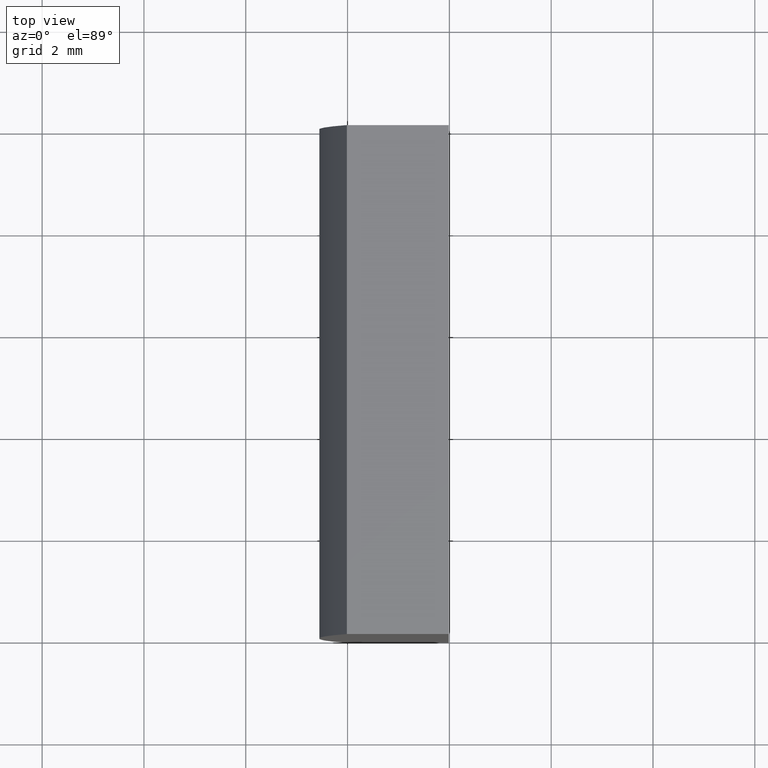
[diagram: clean part render]
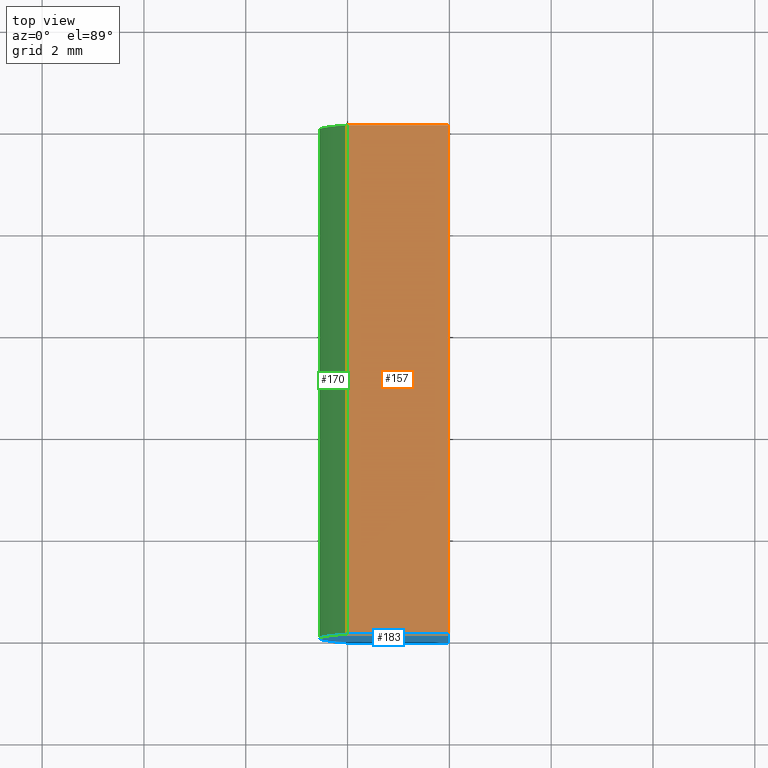
[diagram: same view with three faces highlighted in distinct colors, each labeled with its STEP entity id]
A machine part, top view with three faces highlighted in distinct colors.
Their STEP definitions:

[orange] entity #157 — the highlighted planar face has unit normal (0, 0, -1).
#1 = CARTESIAN_POINT ( 'NONE',  ( -18.01277277529439400, 10.00000000000000000, 5.000000000000000000 ) ) ;
#6 = DIRECTION ( 'NONE',  ( -0.0000000000000000000, -1.000000000000000000, -0.0000000000000000000 ) ) ;
#23 = CARTESIAN_POINT ( 'NONE',  ( -16.01479566514873600, 10.00000000000000000, 5.000000000000000000 ) ) ;
#28 = EDGE_LOOP ( 'NONE', ( #34, #57, #76, #97 ) ) ;
#29 = CARTESIAN_POINT ( 'NONE',  ( -16.01479566514873600, 0.0000000000000000000, 5.000000000000000000 ) ) ;
#31 = VERTEX_POINT ( 'NONE', #33 ) ;
#33 = CARTESIAN_POINT ( 'NONE',  ( -18.01277277529439400, 10.00000000000000000, 5.000000000000000000 ) ) ;
#34 = ORIENTED_EDGE ( 'NONE', *, *, #73, .T. ) ;
#39 = LINE ( 'NONE', #192, #158 ) ;
#47 = VECTOR ( 'NONE', #167, 1000.000000000000000 ) ;
#50 = CARTESIAN_POINT ( 'NONE',  ( -18.01277277529439400, 10.00000000000000000, 5.000000000000000000 ) ) ;
#52 = LINE ( 'NONE', #50, #80 ) ;
#57 = ORIENTED_EDGE ( 'NONE', *, *, #185, .F. ) ;
#64 = CARTESIAN_POINT ( 'NONE',  ( -18.01277277529439400, 0.0000000000000000000, 5.000000000000000000 ) ) ;
#73 = EDGE_CURVE ( 'NONE', #121, #162, #81, .T. ) ;
#76 = ORIENTED_EDGE ( 'NONE', *, *, #106, .F. ) ;
#80 = VECTOR ( 'NONE', #6, 1000.000000000000000 ) ;
#81 = LINE ( 'NONE', #64, #117 ) ;
#95 = EDGE_CURVE ( 'NONE', #31, #121, #52, .T. ) ;
#96 = LINE ( 'NONE', #144, #47 ) ;
#97 = ORIENTED_EDGE ( 'NONE', *, *, #95, .T. ) ;
#104 = VERTEX_POINT ( 'NONE', #23 ) ;
#106 = EDGE_CURVE ( 'NONE', #31, #104, #39, .T. ) ;
#117 = VECTOR ( 'NONE', #193, 1000.000000000000000 ) ;
#120 = FACE_OUTER_BOUND ( 'NONE', #28, .T. ) ;
#121 = VERTEX_POINT ( 'NONE', #149 ) ;
#122 = DIRECTION ( 'NONE',  ( 0.0000000000000000000, 0.0000000000000000000, -1.000000000000000000 ) ) ;
#129 = PLANE ( 'NONE',  #195 ) ;
#144 = CARTESIAN_POINT ( 'NONE',  ( -16.01479566514873600, 10.00000000000000000, 5.000000000000000000 ) ) ;
#147 = DIRECTION ( 'NONE',  ( 1.000000000000000000, 0.0000000000000000000, 0.0000000000000000000 ) ) ;
#149 = CARTESIAN_POINT ( 'NONE',  ( -18.01277277529439400, 0.0000000000000000000, 5.000000000000000000 ) ) ;
#157 = ADVANCED_FACE ( 'NONE', ( #120 ), #129, .F. ) ;
#158 = VECTOR ( 'NONE', #147, 1000.000000000000000 ) ;
#159 = DIRECTION ( 'NONE',  ( -1.000000000000000000, 0.0000000000000000000, -0.0000000000000000000 ) ) ;
#162 = VERTEX_POINT ( 'NONE', #29 ) ;
#167 = DIRECTION ( 'NONE',  ( -0.0000000000000000000, -1.000000000000000000, -0.0000000000000000000 ) ) ;
#185 = EDGE_CURVE ( 'NONE', #104, #162, #96, .T. ) ;
#192 = CARTESIAN_POINT ( 'NONE',  ( -18.01277277529439400, 10.00000000000000000, 5.000000000000000000 ) ) ;
#193 = DIRECTION ( 'NONE',  ( 1.000000000000000000, 0.0000000000000000000, 0.0000000000000000000 ) ) ;
#195 = AXIS2_PLACEMENT_3D ( 'NONE', #1, #122, #159 ) ;

[blue] entity #183 — the highlighted planar face has unit normal (0, 1, 0).
#8 = AXIS2_PLACEMENT_3D ( 'NONE', #48, #164, #46 ) ;
#16 = ORIENTED_EDGE ( 'NONE', *, *, #127, .F. ) ;
#20 = VECTOR ( 'NONE', #111, 1000.000000000000000 ) ;
#24 = FACE_OUTER_BOUND ( 'NONE', #90, .T. ) ;
#29 = CARTESIAN_POINT ( 'NONE',  ( -16.01479566514873600, 0.0000000000000000000, 5.000000000000000000 ) ) ;
#32 = CARTESIAN_POINT ( 'NONE',  ( -18.01277277529439400, 0.0000000000000000000, -5.000000000000000000 ) ) ;
#46 = DIRECTION ( 'NONE',  ( 0.0000000000000000000, -0.0000000000000000000, 1.000000000000000000 ) ) ;
#48 = CARTESIAN_POINT ( 'NONE',  ( 4.355204334851265500, 0.0000000000000000000, 4.286263797015675000E-017 ) ) ;
#51 = CARTESIAN_POINT ( 'NONE',  ( -16.01479566514873900, 0.0000000000000000000, -4.999999999999998200 ) ) ;
#62 = DIRECTION ( 'NONE',  ( 0.0000000000000000000, 1.000000000000000000, 0.0000000000000000000 ) ) ;
#64 = CARTESIAN_POINT ( 'NONE',  ( -18.01277277529439400, 0.0000000000000000000, 5.000000000000000000 ) ) ;
#73 = EDGE_CURVE ( 'NONE', #121, #162, #81, .T. ) ;
#81 = LINE ( 'NONE', #64, #117 ) ;
#82 = CARTESIAN_POINT ( 'NONE',  ( 4.355204334851265500, 0.0000000000000000000, 4.286263797015675000E-017 ) ) ;
#86 = LINE ( 'NONE', #51, #134 ) ;
#90 = EDGE_LOOP ( 'NONE', ( #174, #16, #145, #136 ) ) ;
#91 = CARTESIAN_POINT ( 'NONE',  ( -16.01479566514873900, 0.0000000000000000000, -4.999999999999998200 ) ) ;
#98 = EDGE_CURVE ( 'NONE', #132, #121, #150, .T. ) ;
#99 = LINE ( 'NONE', #32, #20 ) ;
#111 = DIRECTION ( 'NONE',  ( -1.000000000000000000, -0.0000000000000000000, -8.682399148458433600E-016 ) ) ;
#117 = VECTOR ( 'NONE', #193, 1000.000000000000000 ) ;
#121 = VERTEX_POINT ( 'NONE', #149 ) ;
#127 = EDGE_CURVE ( 'NONE', #171, #132, #99, .T. ) ;
#130 = AXIS2_PLACEMENT_3D ( 'NONE', #82, #62, #165 ) ;
#132 = VERTEX_POINT ( 'NONE', #190 ) ;
#134 = VECTOR ( 'NONE', #153, 1000.000000000000000 ) ;
#136 = ORIENTED_EDGE ( 'NONE', *, *, #73, .F. ) ;
#137 = EDGE_CURVE ( 'NONE', #162, #171, #86, .T. ) ;
#145 = ORIENTED_EDGE ( 'NONE', *, *, #137, .F. ) ;
#146 = PLANE ( 'NONE',  #8 ) ;
#149 = CARTESIAN_POINT ( 'NONE',  ( -18.01277277529439400, 0.0000000000000000000, 5.000000000000000000 ) ) ;
#150 = CIRCLE ( 'NONE', #130, 22.92000000000000200 ) ;
#153 = DIRECTION ( 'NONE',  ( -3.469446951953614700E-016, -0.0000000000000000000, -1.000000000000000000 ) ) ;
#162 = VERTEX_POINT ( 'NONE', #29 ) ;
#164 = DIRECTION ( 'NONE',  ( 0.0000000000000000000, 1.000000000000000000, 0.0000000000000000000 ) ) ;
#165 = DIRECTION ( 'NONE',  ( 0.0000000000000000000, 0.0000000000000000000, 1.000000000000000000 ) ) ;
#171 = VERTEX_POINT ( 'NONE', #91 ) ;
#174 = ORIENTED_EDGE ( 'NONE', *, *, #98, .F. ) ;
#183 = ADVANCED_FACE ( 'NONE', ( #24 ), #146, .F. ) ;
#190 = CARTESIAN_POINT ( 'NONE',  ( -18.01277277529439400, 0.0000000000000000000, -5.000000000000000000 ) ) ;
#193 = DIRECTION ( 'NONE',  ( 1.000000000000000000, 0.0000000000000000000, 0.0000000000000000000 ) ) ;

[green] entity #170 — the highlighted cylindrical surface (partial cylindrical patch) has radius 22.92 mm, axis along (-0, -1, -0).
#2 = VECTOR ( 'NONE', #25, 1000.000000000000000 ) ;
#5 = DIRECTION ( 'NONE',  ( -0.0000000000000000000, -1.000000000000000000, -0.0000000000000000000 ) ) ;
#6 = DIRECTION ( 'NONE',  ( -0.0000000000000000000, -1.000000000000000000, -0.0000000000000000000 ) ) ;
#11 = ORIENTED_EDGE ( 'NONE', *, *, #98, .T. ) ;
#22 = CARTESIAN_POINT ( 'NONE',  ( -18.01277277529439400, 10.00000000000000000, -5.000000000000000000 ) ) ;
#25 = DIRECTION ( 'NONE',  ( -0.0000000000000000000, -1.000000000000000000, -0.0000000000000000000 ) ) ;
#30 = CARTESIAN_POINT ( 'NONE',  ( -18.01277277529439400, 10.00000000000000000, -5.000000000000000000 ) ) ;
#31 = VERTEX_POINT ( 'NONE', #33 ) ;
#33 = CARTESIAN_POINT ( 'NONE',  ( -18.01277277529439400, 10.00000000000000000, 5.000000000000000000 ) ) ;
#36 = DIRECTION ( 'NONE',  ( 0.0000000000000000000, 0.0000000000000000000, -1.000000000000000000 ) ) ;
#45 = AXIS2_PLACEMENT_3D ( 'NONE', #114, #5, #36 ) ;
#50 = CARTESIAN_POINT ( 'NONE',  ( -18.01277277529439400, 10.00000000000000000, 5.000000000000000000 ) ) ;
#52 = LINE ( 'NONE', #50, #80 ) ;
#55 = LINE ( 'NONE', #30, #2 ) ;
#62 = DIRECTION ( 'NONE',  ( 0.0000000000000000000, 1.000000000000000000, 0.0000000000000000000 ) ) ;
#69 = ORIENTED_EDGE ( 'NONE', *, *, #182, .F. ) ;
#71 = EDGE_LOOP ( 'NONE', ( #11, #115, #69, #138 ) ) ;
#80 = VECTOR ( 'NONE', #6, 1000.000000000000000 ) ;
#82 = CARTESIAN_POINT ( 'NONE',  ( 4.355204334851265500, 0.0000000000000000000, 4.286263797015675000E-017 ) ) ;
#89 = DIRECTION ( 'NONE',  ( 0.0000000000000000000, 1.000000000000000000, 0.0000000000000000000 ) ) ;
#95 = EDGE_CURVE ( 'NONE', #31, #121, #52, .T. ) ;
#98 = EDGE_CURVE ( 'NONE', #132, #121, #150, .T. ) ;
#110 = CARTESIAN_POINT ( 'NONE',  ( 4.355204334851265500, 10.00000000000000000, 4.286263797015675000E-017 ) ) ;
#114 = CARTESIAN_POINT ( 'NONE',  ( 4.355204334851265500, 10.00000000000000000, 4.286263797015675000E-017 ) ) ;
#115 = ORIENTED_EDGE ( 'NONE', *, *, #95, .F. ) ;
#121 = VERTEX_POINT ( 'NONE', #149 ) ;
#130 = AXIS2_PLACEMENT_3D ( 'NONE', #82, #62, #165 ) ;
#131 = CYLINDRICAL_SURFACE ( 'NONE', #45, 22.92000000000000200 ) ;
#132 = VERTEX_POINT ( 'NONE', #190 ) ;
#138 = ORIENTED_EDGE ( 'NONE', *, *, #169, .T. ) ;
#148 = CIRCLE ( 'NONE', #172, 22.92000000000000200 ) ;
#149 = CARTESIAN_POINT ( 'NONE',  ( -18.01277277529439400, 0.0000000000000000000, 5.000000000000000000 ) ) ;
#150 = CIRCLE ( 'NONE', #130, 22.92000000000000200 ) ;
#155 = VERTEX_POINT ( 'NONE', #22 ) ;
#165 = DIRECTION ( 'NONE',  ( 0.0000000000000000000, 0.0000000000000000000, 1.000000000000000000 ) ) ;
#169 = EDGE_CURVE ( 'NONE', #155, #132, #55, .T. ) ;
#170 = ADVANCED_FACE ( 'NONE', ( #191 ), #131, .T. ) ;
#172 = AXIS2_PLACEMENT_3D ( 'NONE', #110, #89, #177 ) ;
#177 = DIRECTION ( 'NONE',  ( 0.0000000000000000000, 0.0000000000000000000, 1.000000000000000000 ) ) ;
#182 = EDGE_CURVE ( 'NONE', #155, #31, #148, .T. ) ;
#190 = CARTESIAN_POINT ( 'NONE',  ( -18.01277277529439400, 0.0000000000000000000, -5.000000000000000000 ) ) ;
#191 = FACE_OUTER_BOUND ( 'NONE', #71, .T. ) ;